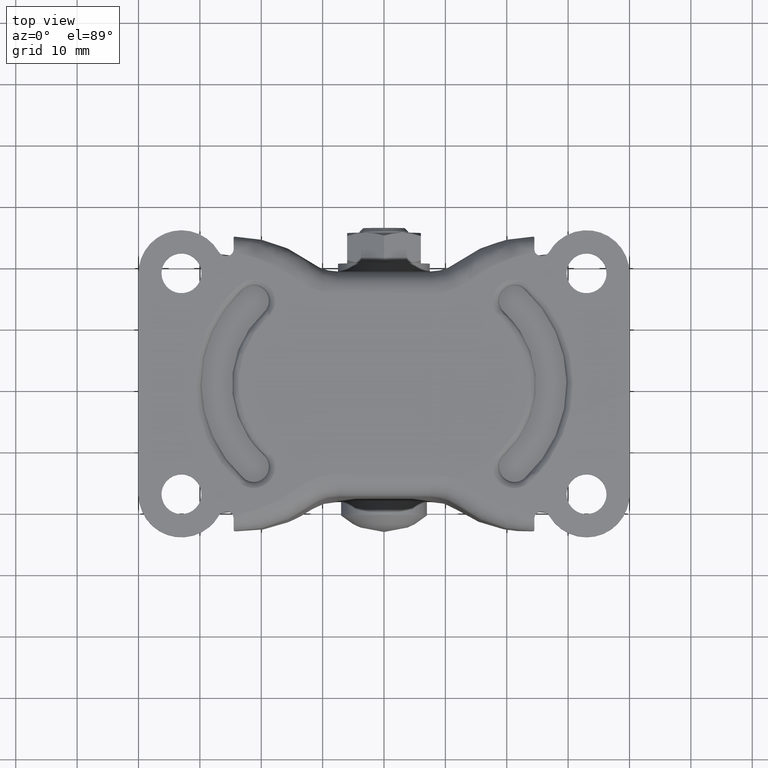
[diagram: clean part render]
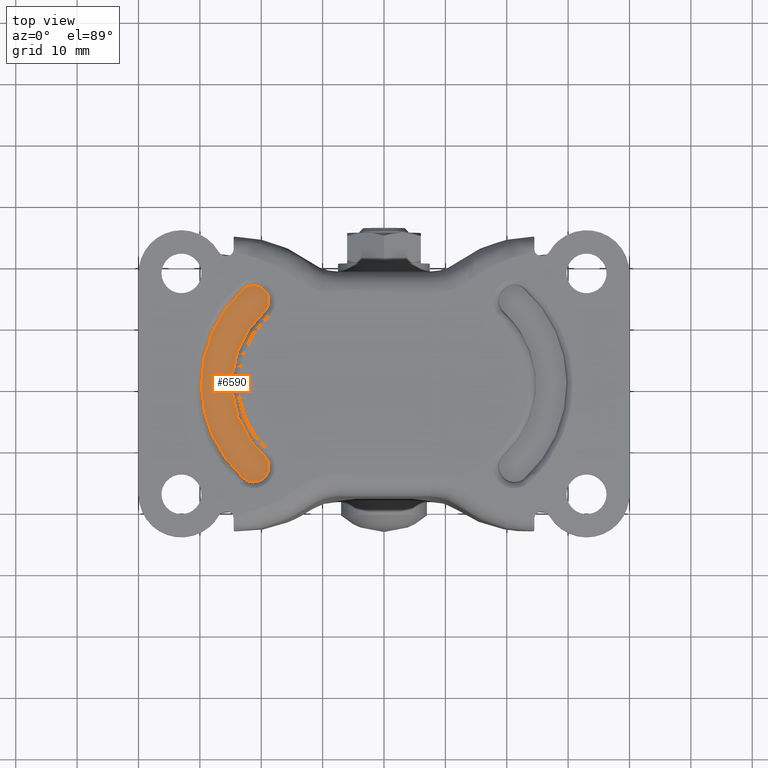
[diagram: same view with one face highlighted and labeled with its STEP entity id]
A machine part, top view. The second image highlights one B-rep face of the part: STEP entity #6590.
In plain terms, the highlighted face is a freeform B-spline surface patch.
Its self-contained STEP definition (entity closure, byte-faithful):
#4964=CARTESIAN_POINT('',(-19.574742257708149,11.644329906235701,-1.0));
#4965=VERTEX_POINT('',#4964);
#4979=CARTESIAN_POINT('',(-19.574742269687949,-11.644329895420601,-1.0));
#4980=VERTEX_POINT('',#4979);
#4981=CARTESIAN_POINT('',(-19.574742257708142,11.644329906235701,-1.0));
#4982=CARTESIAN_POINT('',(-24.749999996413461,6.972222233795471,-1.0));
#4983=CARTESIAN_POINT('',(-24.750000000000000,8.069725E-009,-1.0));
#4984=CARTESIAN_POINT('',(-24.750000003586546,-6.972222217656016,-1.0));
#4985=CARTESIAN_POINT('',(-19.574742269687949,-11.644329895420601,-1.0));
#4993=(BOUNDED_CURVE()B_SPLINE_CURVE(2,(#4981,#4982,#4983,#4984,#4985),.UNSPECIFIED.,.F.,.U.)B_SPLINE_CURVE_WITH_KNOTS((3,2,3),(0.0,0.500000000000000,1.0),.UNSPECIFIED.)CURVE()GEOMETRIC_REPRESENTATION_ITEM()RATIONAL_B_SPLINE_CURVE((1.0,0.913811548544515,1.0,0.913811548544515,1.0))REPRESENTATION_ITEM(''));
#4994=EDGE_CURVE('',#4965,#4980,#4993,.T.);
#5054=CARTESIAN_POINT('',(-22.925257718332350,-15.355670115394400,-1.0));
#5055=VERTEX_POINT('',#5054);
#5087=CARTESIAN_POINT('',(-22.925257718332350,-15.355670115394400,-1.0));
#5088=CARTESIAN_POINT('',(-21.069587608927801,-17.030927828319257,-1.0));
#5089=CARTESIAN_POINT('',(-19.394329890013100,-15.175257724322201,-1.0));
#5090=CARTESIAN_POINT('',(-17.719072171098404,-13.319587620325148,-1.0));
#5091=CARTESIAN_POINT('',(-19.574742269687949,-11.644329895420601,-1.0));
#5099=(BOUNDED_CURVE()B_SPLINE_CURVE(2,(#5087,#5088,#5089,#5090,#5091),.UNSPECIFIED.,.F.,.U.)B_SPLINE_CURVE_WITH_KNOTS((3,2,3),(0.0,0.500000000000000,1.0),.UNSPECIFIED.)CURVE()GEOMETRIC_REPRESENTATION_ITEM()RATIONAL_B_SPLINE_CURVE((1.0,0.707106782327770,1.0,0.707106782327770,1.0))REPRESENTATION_ITEM(''));
#5100=EDGE_CURVE('',#5055,#4980,#5099,.T.);
#5130=CARTESIAN_POINT('',(-22.925257718332251,15.355670115394499,-1.0));
#5131=VERTEX_POINT('',#5130);
#5145=CARTESIAN_POINT('',(-19.574742257708149,11.644329906235701,-1.0));
#5146=CARTESIAN_POINT('',(-17.719072175923650,13.319587637712450,-1.0));
#5147=CARTESIAN_POINT('',(-19.394329895420601,15.175257730312049,-1.0));
#5148=CARTESIAN_POINT('',(-21.069587614917548,17.030927822911650,-1.0));
#5149=CARTESIAN_POINT('',(-22.925257718332240,15.355670115394499,-1.0));
#5157=(BOUNDED_CURVE()B_SPLINE_CURVE(2,(#5145,#5146,#5147,#5148,#5149),.UNSPECIFIED.,.F.,.U.)B_SPLINE_CURVE_WITH_KNOTS((3,2,3),(0.0,0.500000000000000,1.0),.UNSPECIFIED.)CURVE()GEOMETRIC_REPRESENTATION_ITEM()RATIONAL_B_SPLINE_CURVE((1.0,0.707106783469011,1.0,0.707106783469011,1.0))REPRESENTATION_ITEM(''));
#5158=EDGE_CURVE('',#4965,#5131,#5157,.T.);
#5197=CARTESIAN_POINT('',(-22.925257718332240,15.355670115394510,-1.0));
#5198=CARTESIAN_POINT('',(-29.750000000000000,9.194444455436557,-1.0));
#5199=CARTESIAN_POINT('',(-29.750000000000000,0.0,-1.0));
#5200=CARTESIAN_POINT('',(-29.750000000000000,-9.194444455436463,-1.0));
#5201=CARTESIAN_POINT('',(-22.925257718332361,-15.355670115394400,-1.0));
#5209=(BOUNDED_CURVE()B_SPLINE_CURVE(2,(#5197,#5198,#5199,#5200,#5201),.UNSPECIFIED.,.F.,.U.)B_SPLINE_CURVE_WITH_KNOTS((3,2,3),(0.0,0.500000000000000,1.0),.UNSPECIFIED.)CURVE()GEOMETRIC_REPRESENTATION_ITEM()RATIONAL_B_SPLINE_CURVE((1.0,0.913811548440055,1.0,0.913811548440055,1.0))REPRESENTATION_ITEM(''));
#5210=EDGE_CURVE('',#5131,#5055,#5209,.T.);
#6579=CARTESIAN_POINT('',(-30.299449872460190,17.598397960313171,-1.0));
#6580=CARTESIAN_POINT('',(-18.200551959230520,17.598397960313171,-1.0));
#6581=CARTESIAN_POINT('',(-30.299449872460190,-17.598397488703451,-1.0));
#6582=CARTESIAN_POINT('',(-18.200551959230520,-17.598397488703451,-1.0));
#6583=B_SPLINE_SURFACE_WITH_KNOTS('',1,1,((#6579,#6581),(#6580,#6582)),.UNSPECIFIED.,.F.,.F.,.U.,(2,2),(2,2),(0.0,12.098897913229671),(0.0,35.196795449016619),.UNSPECIFIED.);
#6584=ORIENTED_EDGE('',*,*,#5158,.T.);
#6585=ORIENTED_EDGE('',*,*,#5210,.T.);
#6586=ORIENTED_EDGE('',*,*,#5100,.T.);
#6587=ORIENTED_EDGE('',*,*,#4994,.F.);
#6588=EDGE_LOOP('',(#6584,#6585,#6586,#6587));
#6589=FACE_OUTER_BOUND('',#6588,.T.);
#6590=ADVANCED_FACE('',(#6589),#6583,.F.);